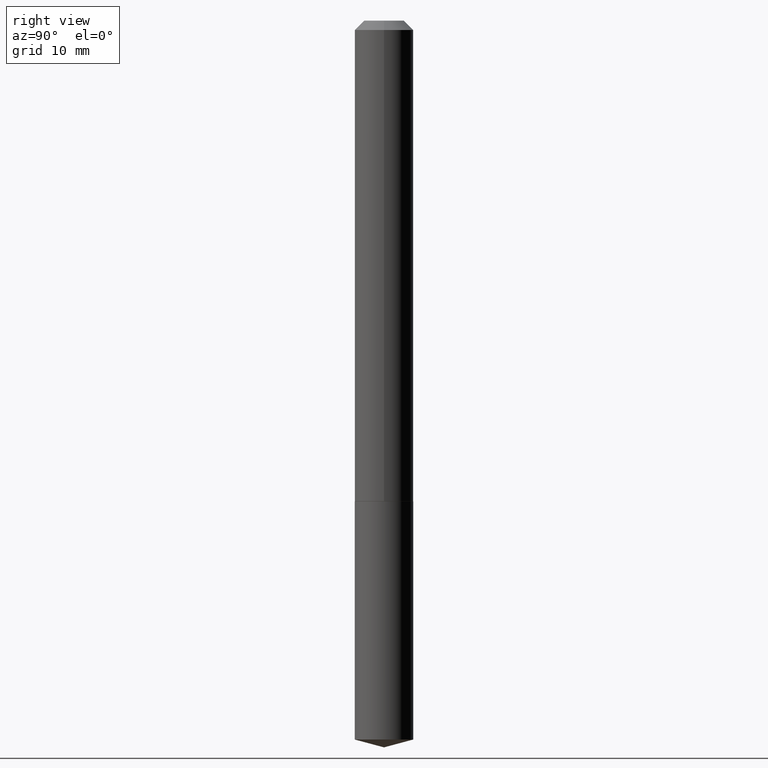
[diagram: clean part render]
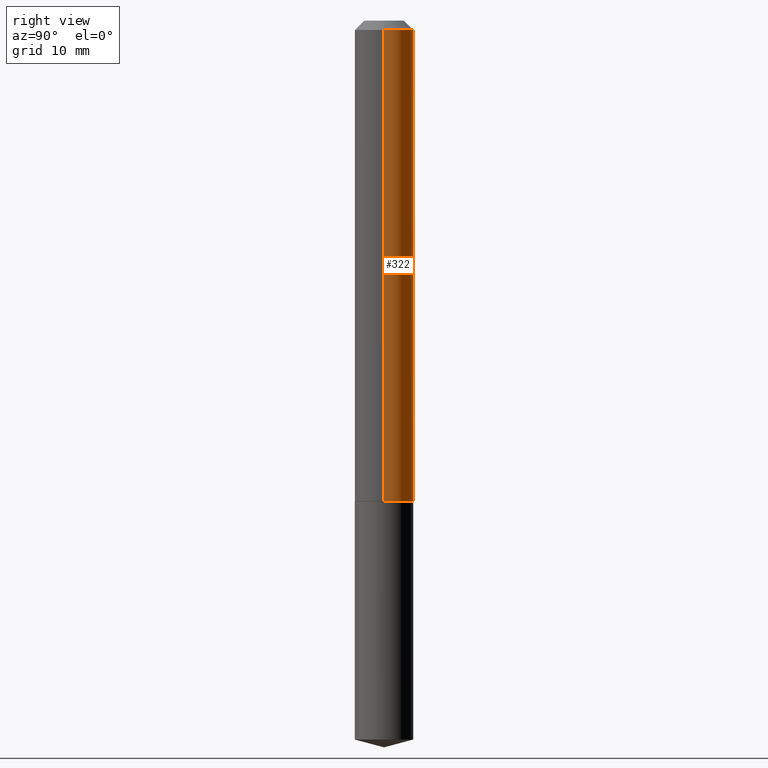
[diagram: same view with one face highlighted and labeled with its STEP entity id]
A machine part, right view. The second image highlights one B-rep face of the part: STEP entity #322.
In plain terms, the highlighted cylindrical surface (edge-blend (fillet) strip) has radius 2.5006 mm, axis along (-0, 0, 1).
Its self-contained STEP definition (entity closure, byte-faithful):
#6 = EDGE_CURVE ( 'NONE', #123, #162, #85, .T. ) ;
#7 = EDGE_LOOP ( 'NONE', ( #89, #301, #61, #267 ) ) ;
#38 = CARTESIAN_POINT ( 'NONE',  ( -0.09845000000000020401, -4.934674113135364966E-15, -1.613700000000000134 ) ) ;
#39 = CARTESIAN_POINT ( 'NONE',  ( 0.09845000000000010687, -6.874726756182137434E-16, 4.800596035771104119E-30 ) ) ;
#47 = CIRCLE ( 'NONE', #56, 0.09845000000000020401 ) ;
#55 = EDGE_CURVE ( 'NONE', #362, #123, #167, .T. ) ;
#56 = AXIS2_PLACEMENT_3D ( 'NONE', #173, #176, #210 ) ;
#59 = DIRECTION ( 'NONE',  ( -2.445468806185136597E-29, 3.491481338843145583E-15, 1.000000000000000000 ) ) ;
#61 = ORIENTED_EDGE ( 'NONE', *, *, #6, .F. ) ;
#69 = EDGE_CURVE ( 'NONE', #141, #162, #337, .T. ) ;
#79 = CARTESIAN_POINT ( 'NONE',  ( 0.09845000000000020401, -6.321676112109399581E-15, -1.613700000000000134 ) ) ;
#85 = CIRCLE ( 'NONE', #286, 0.09845000000000000973 ) ;
#89 = ORIENTED_EDGE ( 'NONE', *, *, #225, .T. ) ;
#104 = CYLINDRICAL_SURFACE ( 'NONE', #355, 0.09845000000000010687 ) ;
#113 = DIRECTION ( 'NONE',  ( -2.445468806185136597E-29, 3.491481338843145583E-15, 1.000000000000000000 ) ) ;
#123 = VERTEX_POINT ( 'NONE', #223 ) ;
#132 = CARTESIAN_POINT ( 'NONE',  ( -0.09845000000000010687, 6.995293233558193923E-16, -4.842691596355960348E-30 ) ) ;
#141 = VERTEX_POINT ( 'NONE', #38 ) ;
#162 = VERTEX_POINT ( 'NONE', #378 ) ;
#167 = LINE ( 'NONE', #39, #312 ) ;
#173 = CARTESIAN_POINT ( 'NONE',  ( 3.946253012540955150E-29, -5.634203436491184654E-15, -1.613700000000000134 ) ) ;
#174 = VECTOR ( 'NONE', #250, 39.37007874015748143 ) ;
#176 = DIRECTION ( 'NONE',  ( -2.445468806185136597E-29, 3.491481338843145583E-15, 1.000000000000000000 ) ) ;
#178 = DIRECTION ( 'NONE',  ( 1.000000000000000000, -6.982962677686266711E-15, 0.000000000000000000 ) ) ;
#207 = CARTESIAN_POINT ( 'NONE',  ( 7.642090019328601786E-31, -1.091087918388490144E-16, -0.03125000000000020123 ) ) ;
#210 = DIRECTION ( 'NONE',  ( 1.000000000000000000, -6.982962677686269866E-15, 0.000000000000000000 ) ) ;
#223 = CARTESIAN_POINT ( 'NONE',  ( 0.09845000000000000973, -7.965814674570621538E-16, -0.03125000000000020123 ) ) ;
#225 = EDGE_CURVE ( 'NONE', #362, #141, #47, .T. ) ;
#229 = DIRECTION ( 'NONE',  ( 1.000000000000000000, -6.982962677686267499E-15, 4.876176775795935793E-29 ) ) ;
#233 = CARTESIAN_POINT ( 'NONE',  ( 0.000000000000000000, 0.000000000000000000, 0.000000000000000000 ) ) ;
#250 = DIRECTION ( 'NONE',  ( -2.445468806185136877E-29, 3.491481338843145188E-15, 1.000000000000000000 ) ) ;
#267 = ORIENTED_EDGE ( 'NONE', *, *, #55, .F. ) ;
#276 = DIRECTION ( 'NONE',  ( -2.445468806185136877E-29, 3.491481338843145188E-15, 1.000000000000000000 ) ) ;
#286 = AXIS2_PLACEMENT_3D ( 'NONE', #207, #59, #178 ) ;
#301 = ORIENTED_EDGE ( 'NONE', *, *, #69, .T. ) ;
#312 = VECTOR ( 'NONE', #276, 39.37007874015748143 ) ;
#322 = ADVANCED_FACE ( 'NONE', ( #385 ), #104, .T. ) ;
#337 = LINE ( 'NONE', #132, #174 ) ;
#355 = AXIS2_PLACEMENT_3D ( 'NONE', #233, #113, #229 ) ;
#362 = VERTEX_POINT ( 'NONE', #79 ) ;
#378 = CARTESIAN_POINT ( 'NONE',  ( -0.09845000000000000973, -2.172126790809196006E-15, -0.03125000000000020123 ) ) ;
#385 = FACE_OUTER_BOUND ( 'NONE', #7, .T. ) ;